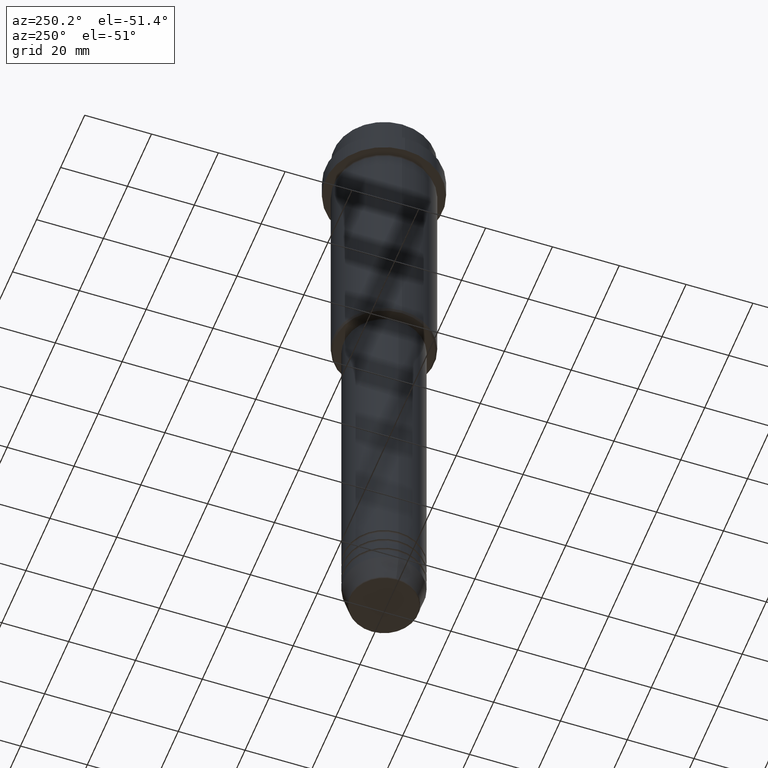
[diagram: clean part render]
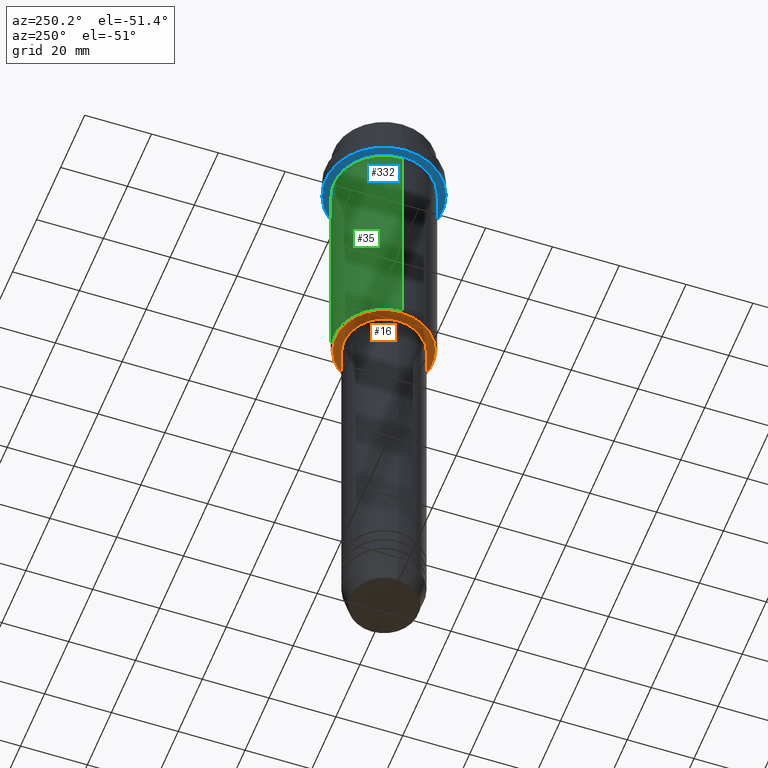
[diagram: same view with three faces highlighted in distinct colors, each labeled with its STEP entity id]
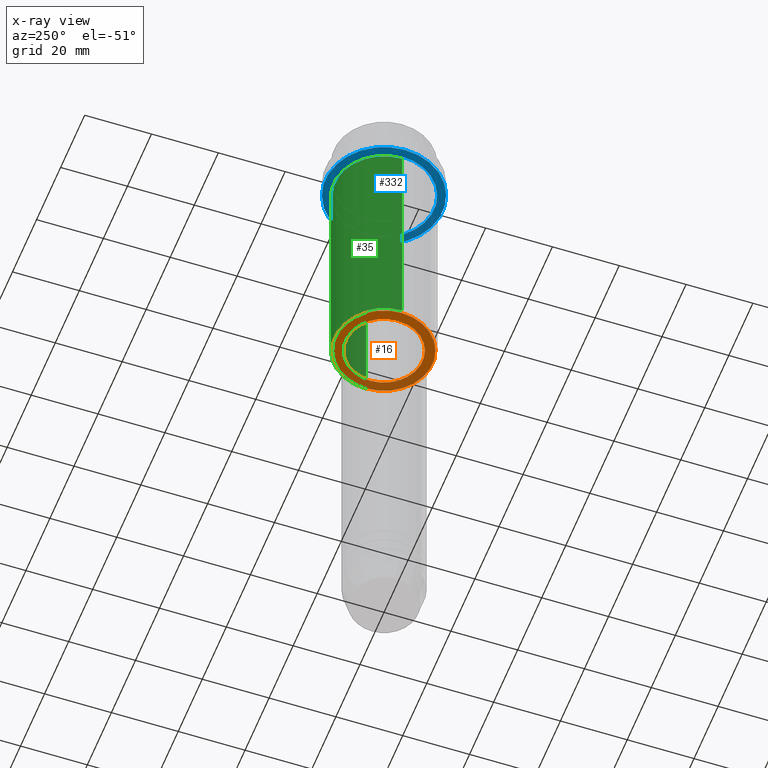
[diagram: x-ray of the same camera — body ghosted, the three highlighted faces saturated]
A machine part, auxiliary view with three faces highlighted in distinct colors.
The next image is the same camera in x-ray (body ghosted, the three faces saturated) — at least one of them is partly hidden behind the body in this view.
Their STEP definitions:

[orange] entity #16 — the highlighted planar face has unit normal (0, 0, -1).
#16 = ADVANCED_FACE ( 'NONE', ( #1416, #956 ), #1404, .T. ) ;
#21 = CARTESIAN_POINT ( 'NONE',  ( 0.000000000000000000, 0.000000000000000000, -85.00000000000000000 ) ) ;
#51 = CIRCLE ( 'NONE', #1004, 14.49999999999995559 ) ;
#54 = CIRCLE ( 'NONE', #1328, 11.49999999999999467 ) ;
#69 = DIRECTION ( 'NONE',  ( 0.000000000000000000, 0.000000000000000000, -1.000000000000000000 ) ) ;
#86 = DIRECTION ( 'NONE',  ( 1.000000000000000000, 0.000000000000000000, 0.000000000000000000 ) ) ;
#150 = EDGE_CURVE ( 'NONE', #891, #557, #51, .T. ) ;
#170 = AXIS2_PLACEMENT_3D ( 'NONE', #738, #523, #86 ) ;
#213 = DIRECTION ( 'NONE',  ( 0.000000000000000000, 0.000000000000000000, -1.000000000000000000 ) ) ;
#297 = CARTESIAN_POINT ( 'NONE',  ( -11.49999999999999467, 1.408343819019455781E-15, -85.00000000000000000 ) ) ;
#303 = EDGE_LOOP ( 'NONE', ( #766, #487 ) ) ;
#313 = CARTESIAN_POINT ( 'NONE',  ( 0.000000000000000000, 0.000000000000000000, -85.00000000000000000 ) ) ;
#319 = VERTEX_POINT ( 'NONE', #297 ) ;
#377 = DIRECTION ( 'NONE',  ( -0.000000000000000000, -0.000000000000000000, 1.000000000000000000 ) ) ;
#378 = CARTESIAN_POINT ( 'NONE',  ( -14.49999999999995559, 1.806354028742343041E-15, -85.00000000000000000 ) ) ;
#424 = DIRECTION ( 'NONE',  ( -1.000000000000000000, 0.000000000000000000, -0.000000000000000000 ) ) ;
#472 = ORIENTED_EDGE ( 'NONE', *, *, #1204, .T. ) ;
#487 = ORIENTED_EDGE ( 'NONE', *, *, #758, .T. ) ;
#500 = DIRECTION ( 'NONE',  ( -1.000000000000000000, 0.000000000000000000, 0.000000000000000000 ) ) ;
#507 = CARTESIAN_POINT ( 'NONE',  ( 0.000000000000000000, 0.000000000000000000, -85.00000000000000000 ) ) ;
#523 = DIRECTION ( 'NONE',  ( -0.000000000000000000, -0.000000000000000000, 1.000000000000000000 ) ) ;
#547 = DIRECTION ( 'NONE',  ( 0.000000000000000000, 0.000000000000000000, -1.000000000000000000 ) ) ;
#557 = VERTEX_POINT ( 'NONE', #378 ) ;
#723 = CIRCLE ( 'NONE', #170, 11.49999999999999467 ) ;
#724 = CIRCLE ( 'NONE', #1191, 14.49999999999995559 ) ;
#738 = CARTESIAN_POINT ( 'NONE',  ( 0.000000000000000000, 0.000000000000000000, -85.00000000000000000 ) ) ;
#758 = EDGE_CURVE ( 'NONE', #319, #910, #54, .T. ) ;
#766 = ORIENTED_EDGE ( 'NONE', *, *, #829, .T. ) ;
#829 = EDGE_CURVE ( 'NONE', #910, #319, #723, .T. ) ;
#839 = CARTESIAN_POINT ( 'NONE',  ( 14.49999999999995559, 0.000000000000000000, -85.00000000000000000 ) ) ;
#891 = VERTEX_POINT ( 'NONE', #839 ) ;
#892 = AXIS2_PLACEMENT_3D ( 'NONE', #971, #547, #424 ) ;
#910 = VERTEX_POINT ( 'NONE', #1412 ) ;
#956 = FACE_BOUND ( 'NONE', #303, .T. ) ;
#971 = CARTESIAN_POINT ( 'NONE',  ( 0.000000000000000000, 15.00000000000000000, -85.00000000000000000 ) ) ;
#974 = DIRECTION ( 'NONE',  ( -1.000000000000000000, 0.000000000000000000, 0.000000000000000000 ) ) ;
#984 = ORIENTED_EDGE ( 'NONE', *, *, #150, .T. ) ;
#1004 = AXIS2_PLACEMENT_3D ( 'NONE', #313, #213, #974 ) ;
#1056 = EDGE_LOOP ( 'NONE', ( #984, #472 ) ) ;
#1191 = AXIS2_PLACEMENT_3D ( 'NONE', #507, #69, #500 ) ;
#1204 = EDGE_CURVE ( 'NONE', #557, #891, #724, .T. ) ;
#1247 = DIRECTION ( 'NONE',  ( 1.000000000000000000, 0.000000000000000000, 0.000000000000000000 ) ) ;
#1328 = AXIS2_PLACEMENT_3D ( 'NONE', #21, #377, #1247 ) ;
#1404 = PLANE ( 'NONE',  #892 ) ;
#1412 = CARTESIAN_POINT ( 'NONE',  ( 11.49999999999999467, 0.000000000000000000, -85.00000000000000000 ) ) ;
#1416 = FACE_OUTER_BOUND ( 'NONE', #1056, .T. ) ;

[blue] entity #332 — the highlighted planar face has unit normal (0, 0, -1).
#29 = CIRCLE ( 'NONE', #627, 17.50000000000000000 ) ;
#76 = EDGE_CURVE ( 'NONE', #667, #200, #308, .T. ) ;
#134 = ORIENTED_EDGE ( 'NONE', *, *, #977, .F. ) ;
#163 = CARTESIAN_POINT ( 'NONE',  ( 0.000000000000000000, 17.50000000000000000, -15.00000000000000000 ) ) ;
#193 = CIRCLE ( 'NONE', #692, 14.99999999999999467 ) ;
#199 = ORIENTED_EDGE ( 'NONE', *, *, #733, .F. ) ;
#200 = VERTEX_POINT ( 'NONE', #449 ) ;
#210 = CARTESIAN_POINT ( 'NONE',  ( -17.50000000000000000, 2.143131898507868248E-15, -15.00000000000000000 ) ) ;
#220 = CIRCLE ( 'NONE', #1237, 17.50000000000000000 ) ;
#270 = DIRECTION ( 'NONE',  ( -0.000000000000000000, -0.000000000000000000, 1.000000000000000000 ) ) ;
#308 = CIRCLE ( 'NONE', #1400, 14.99999999999999467 ) ;
#318 = DIRECTION ( 'NONE',  ( -1.000000000000000000, 0.000000000000000000, 0.000000000000000000 ) ) ;
#332 = ADVANCED_FACE ( 'NONE', ( #812, #497 ), #1245, .T. ) ;
#360 = VERTEX_POINT ( 'NONE', #210 ) ;
#387 = DIRECTION ( 'NONE',  ( -1.000000000000000000, 0.000000000000000000, -0.000000000000000000 ) ) ;
#445 = EDGE_LOOP ( 'NONE', ( #199, #134 ) ) ;
#449 = CARTESIAN_POINT ( 'NONE',  ( -14.99999999999999467, 0.000000000000000000, -15.00000000000000000 ) ) ;
#454 = CARTESIAN_POINT ( 'NONE',  ( 0.000000000000000000, 0.000000000000000000, -15.00000000000000000 ) ) ;
#467 = DIRECTION ( 'NONE',  ( 1.000000000000000000, 0.000000000000000000, 0.000000000000000000 ) ) ;
#497 = FACE_OUTER_BOUND ( 'NONE', #445, .T. ) ;
#524 = CARTESIAN_POINT ( 'NONE',  ( 17.50000000000000000, 0.000000000000000000, -15.00000000000000000 ) ) ;
#548 = ORIENTED_EDGE ( 'NONE', *, *, #76, .T. ) ;
#599 = CARTESIAN_POINT ( 'NONE',  ( 0.000000000000000000, 0.000000000000000000, -15.00000000000000000 ) ) ;
#603 = EDGE_CURVE ( 'NONE', #200, #667, #193, .T. ) ;
#627 = AXIS2_PLACEMENT_3D ( 'NONE', #1397, #1289, #1041 ) ;
#667 = VERTEX_POINT ( 'NONE', #1255 ) ;
#692 = AXIS2_PLACEMENT_3D ( 'NONE', #1066, #1395, #318 ) ;
#703 = ORIENTED_EDGE ( 'NONE', *, *, #603, .T. ) ;
#733 = EDGE_CURVE ( 'NONE', #1067, #360, #29, .T. ) ;
#812 = FACE_BOUND ( 'NONE', #1394, .T. ) ;
#914 = AXIS2_PLACEMENT_3D ( 'NONE', #163, #929, #387 ) ;
#929 = DIRECTION ( 'NONE',  ( 0.000000000000000000, 0.000000000000000000, -1.000000000000000000 ) ) ;
#977 = EDGE_CURVE ( 'NONE', #360, #1067, #220, .T. ) ;
#1001 = DIRECTION ( 'NONE',  ( -0.000000000000000000, -0.000000000000000000, 1.000000000000000000 ) ) ;
#1037 = DIRECTION ( 'NONE',  ( -1.000000000000000000, 0.000000000000000000, 0.000000000000000000 ) ) ;
#1041 = DIRECTION ( 'NONE',  ( 1.000000000000000000, 0.000000000000000000, 0.000000000000000000 ) ) ;
#1066 = CARTESIAN_POINT ( 'NONE',  ( 0.000000000000000000, 0.000000000000000000, -15.00000000000000000 ) ) ;
#1067 = VERTEX_POINT ( 'NONE', #524 ) ;
#1237 = AXIS2_PLACEMENT_3D ( 'NONE', #454, #1001, #467 ) ;
#1245 = PLANE ( 'NONE',  #914 ) ;
#1255 = CARTESIAN_POINT ( 'NONE',  ( 14.99999999999999467, 1.836970198721029194E-15, -15.00000000000000000 ) ) ;
#1289 = DIRECTION ( 'NONE',  ( -0.000000000000000000, -0.000000000000000000, 1.000000000000000000 ) ) ;
#1394 = EDGE_LOOP ( 'NONE', ( #703, #548 ) ) ;
#1395 = DIRECTION ( 'NONE',  ( -0.000000000000000000, -0.000000000000000000, 1.000000000000000000 ) ) ;
#1397 = CARTESIAN_POINT ( 'NONE',  ( 0.000000000000000000, 0.000000000000000000, -15.00000000000000000 ) ) ;
#1400 = AXIS2_PLACEMENT_3D ( 'NONE', #599, #270, #1037 ) ;

[green] entity #35 — the highlighted cylindrical surface (partial cylindrical patch) has radius 15 mm, axis along (-0, -0, 1).
#7 = DIRECTION ( 'NONE',  ( 1.000000000000000000, 0.000000000000000000, 0.000000000000000000 ) ) ;
#8 = EDGE_CURVE ( 'NONE', #1102, #90, #1318, .T. ) ;
#35 = ADVANCED_FACE ( 'NONE', ( #1065 ), #767, .T. ) ;
#90 = VERTEX_POINT ( 'NONE', #165 ) ;
#165 = CARTESIAN_POINT ( 'NONE',  ( -15.00000000000000355, 1.836970198721029983E-15, -16.00000000000000000 ) ) ;
#166 = VECTOR ( 'NONE', #316, 1000.000000000000000 ) ;
#251 = EDGE_CURVE ( 'NONE', #355, #1360, #1351, .T. ) ;
#254 = CARTESIAN_POINT ( 'NONE',  ( 0.000000000000000000, 0.000000000000000000, -16.00000000000000000 ) ) ;
#316 = DIRECTION ( 'NONE',  ( -0.000000000000000000, -0.000000000000000000, 1.000000000000000000 ) ) ;
#325 = DIRECTION ( 'NONE',  ( 1.000000000000000000, 0.000000000000000000, 0.000000000000000000 ) ) ;
#326 = ORIENTED_EDGE ( 'NONE', *, *, #787, .F. ) ;
#355 = VERTEX_POINT ( 'NONE', #1157 ) ;
#372 = CIRCLE ( 'NONE', #560, 15.00000000000000178 ) ;
#381 = CARTESIAN_POINT ( 'NONE',  ( 15.00000000000000000, 0.000000000000000000, 0.000000000000000000 ) ) ;
#465 = CIRCLE ( 'NONE', #806, 15.00000000000000000 ) ;
#531 = DIRECTION ( 'NONE',  ( -0.000000000000000000, -0.000000000000000000, 1.000000000000000000 ) ) ;
#533 = ORIENTED_EDGE ( 'NONE', *, *, #1332, .T. ) ;
#546 = ORIENTED_EDGE ( 'NONE', *, *, #251, .F. ) ;
#560 = AXIS2_PLACEMENT_3D ( 'NONE', #254, #983, #7 ) ;
#656 = DIRECTION ( 'NONE',  ( -1.000000000000000000, 0.000000000000000000, 0.000000000000000000 ) ) ;
#657 = CARTESIAN_POINT ( 'NONE',  ( -15.00000000000000000, 1.836970198721029589E-15, 0.000000000000000000 ) ) ;
#661 = CARTESIAN_POINT ( 'NONE',  ( 0.000000000000000000, 0.000000000000000000, -84.49999999999995737 ) ) ;
#666 = DIRECTION ( 'NONE',  ( -0.000000000000000000, -0.000000000000000000, 1.000000000000000000 ) ) ;
#767 = CYLINDRICAL_SURFACE ( 'NONE', #1231, 15.00000000000000000 ) ;
#787 = EDGE_CURVE ( 'NONE', #1360, #90, #372, .T. ) ;
#806 = AXIS2_PLACEMENT_3D ( 'NONE', #661, #666, #656 ) ;
#983 = DIRECTION ( 'NONE',  ( -0.000000000000000000, -0.000000000000000000, 1.000000000000000000 ) ) ;
#1058 = CARTESIAN_POINT ( 'NONE',  ( 0.000000000000000000, 0.000000000000000000, 0.000000000000000000 ) ) ;
#1065 = FACE_OUTER_BOUND ( 'NONE', #1364, .T. ) ;
#1071 = VECTOR ( 'NONE', #1238, 1000.000000000000000 ) ;
#1102 = VERTEX_POINT ( 'NONE', #1380 ) ;
#1157 = CARTESIAN_POINT ( 'NONE',  ( 15.00000000000000000, 0.000000000000000000, -84.49999999999995737 ) ) ;
#1225 = CARTESIAN_POINT ( 'NONE',  ( 15.00000000000000178, 0.000000000000000000, -16.00000000000000000 ) ) ;
#1231 = AXIS2_PLACEMENT_3D ( 'NONE', #1058, #531, #325 ) ;
#1238 = DIRECTION ( 'NONE',  ( -0.000000000000000000, -0.000000000000000000, 1.000000000000000000 ) ) ;
#1242 = ORIENTED_EDGE ( 'NONE', *, *, #8, .T. ) ;
#1318 = LINE ( 'NONE', #657, #166 ) ;
#1332 = EDGE_CURVE ( 'NONE', #355, #1102, #465, .T. ) ;
#1351 = LINE ( 'NONE', #381, #1071 ) ;
#1360 = VERTEX_POINT ( 'NONE', #1225 ) ;
#1364 = EDGE_LOOP ( 'NONE', ( #533, #1242, #326, #546 ) ) ;
#1380 = CARTESIAN_POINT ( 'NONE',  ( -15.00000000000000000, 1.836970198721029589E-15, -84.49999999999995737 ) ) ;